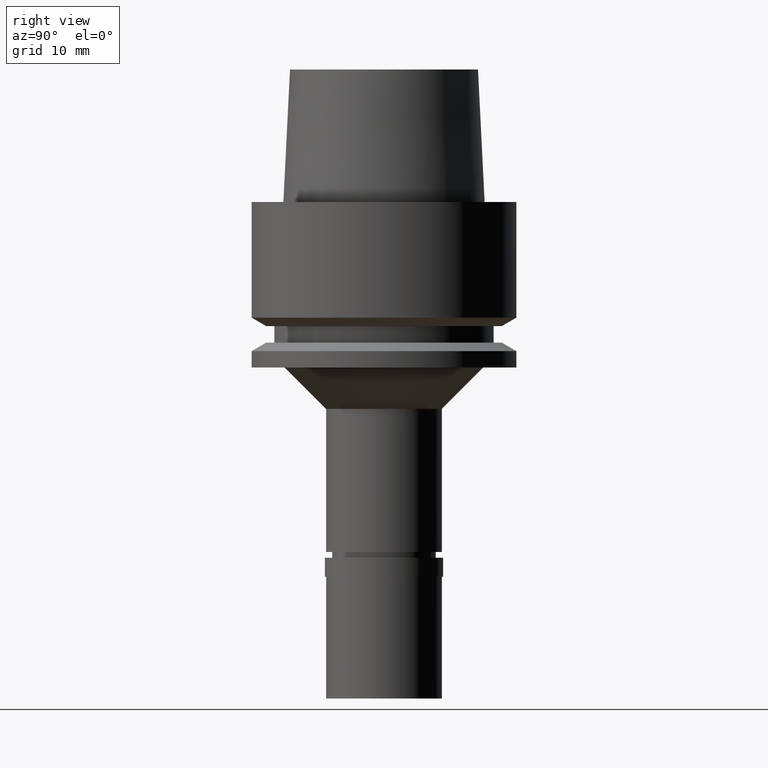
[diagram: clean part render]
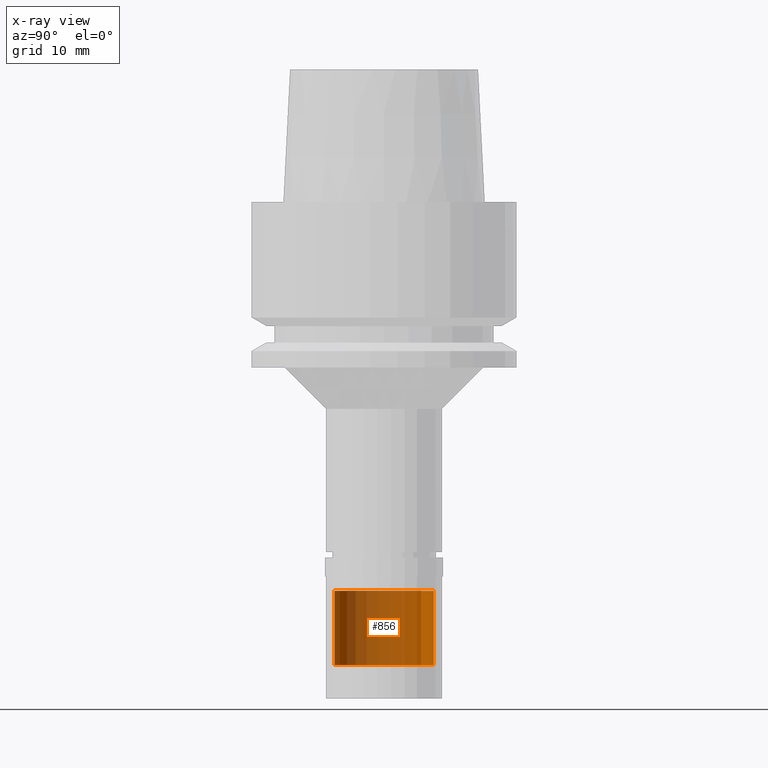
[diagram: x-ray — body ghosted, one internal face saturated and labeled with its STEP entity id]
A machine part, right view, then the same camera in x-ray: the body is ghosted and one INTERNAL B-rep face — a face not visible from any outside direction — is saturated and labeled: STEP entity #856.
In plain terms, the highlighted cylindrical surface (partial cylindrical patch) has radius 6 mm, axis along (0, 0, 1).
Its self-contained STEP definition (entity closure, byte-faithful):
#62 = VECTOR ( 'NONE', #2606, 1000.000000000000000 ) ;
#156 = AXIS2_PLACEMENT_3D ( 'NONE', #2079, #180, #1936 ) ;
#178 = VERTEX_POINT ( 'NONE', #1346 ) ;
#180 = DIRECTION ( 'NONE',  ( 0.0000000000000000000, 0.0000000000000000000, 1.000000000000000000 ) ) ;
#348 = CARTESIAN_POINT ( 'NONE',  ( 0.0000000000000000000, -6.000000000000000000, -56.00000000000000000 ) ) ;
#392 = DIRECTION ( 'NONE',  ( 0.0000000000000000000, 1.000000000000000000, 0.0000000000000000000 ) ) ;
#505 = EDGE_CURVE ( 'NONE', #178, #2668, #1974, .T. ) ;
#600 = CARTESIAN_POINT ( 'NONE',  ( 0.0000000000000000000, 0.0000000000000000000, -56.00000000000000000 ) ) ;
#620 = CARTESIAN_POINT ( 'NONE',  ( 0.0000000000000000000, -6.000000000000000000, -47.00000000000000000 ) ) ;
#652 = CYLINDRICAL_SURFACE ( 'NONE', #156, 6.000000000000000000 ) ;
#741 = EDGE_CURVE ( 'NONE', #1078, #2578, #2675, .T. ) ;
#856 = ADVANCED_FACE ( 'NONE', ( #869 ), #652, .T. ) ;
#869 = FACE_OUTER_BOUND ( 'NONE', #1347, .T. ) ;
#979 = DIRECTION ( 'NONE',  ( 0.0000000000000000000, -1.000000000000000000, 0.0000000000000000000 ) ) ;
#1004 = DIRECTION ( 'NONE',  ( 0.0000000000000000000, 0.0000000000000000000, -1.000000000000000000 ) ) ;
#1025 = DIRECTION ( 'NONE',  ( 0.0000000000000000000, 0.0000000000000000000, 1.000000000000000000 ) ) ;
#1078 = VERTEX_POINT ( 'NONE', #620 ) ;
#1191 = CARTESIAN_POINT ( 'NONE',  ( 0.0000000000000000000, -6.000000000000000000, -47.00000000000000000 ) ) ;
#1336 = AXIS2_PLACEMENT_3D ( 'NONE', #1406, #2656, #979 ) ;
#1346 = CARTESIAN_POINT ( 'NONE',  ( 0.0000000000000000000, 6.000000000000000000, -47.00000000000000000 ) ) ;
#1347 = EDGE_LOOP ( 'NONE', ( #2127, #1636, #2200, #2352 ) ) ;
#1391 = CIRCLE ( 'NONE', #1336, 6.000000000000000000 ) ;
#1406 = CARTESIAN_POINT ( 'NONE',  ( 0.0000000000000000000, 0.0000000000000000000, -47.00000000000000000 ) ) ;
#1593 = CIRCLE ( 'NONE', #1723, 6.000000000000000000 ) ;
#1636 = ORIENTED_EDGE ( 'NONE', *, *, #741, .F. ) ;
#1723 = AXIS2_PLACEMENT_3D ( 'NONE', #600, #1025, #392 ) ;
#1899 = EDGE_CURVE ( 'NONE', #1078, #178, #1391, .T. ) ;
#1936 = DIRECTION ( 'NONE',  ( 0.0000000000000000000, 1.000000000000000000, 0.0000000000000000000 ) ) ;
#1974 = LINE ( 'NONE', #2358, #62 ) ;
#2079 = CARTESIAN_POINT ( 'NONE',  ( 0.0000000000000000000, 0.0000000000000000000, -59.60000000000000142 ) ) ;
#2127 = ORIENTED_EDGE ( 'NONE', *, *, #2373, .T. ) ;
#2200 = ORIENTED_EDGE ( 'NONE', *, *, #1899, .T. ) ;
#2334 = VECTOR ( 'NONE', #1004, 1000.000000000000000 ) ;
#2352 = ORIENTED_EDGE ( 'NONE', *, *, #505, .T. ) ;
#2358 = CARTESIAN_POINT ( 'NONE',  ( 0.0000000000000000000, 6.000000000000000000, -47.00000000000000000 ) ) ;
#2373 = EDGE_CURVE ( 'NONE', #2668, #2578, #1593, .T. ) ;
#2578 = VERTEX_POINT ( 'NONE', #348 ) ;
#2606 = DIRECTION ( 'NONE',  ( 0.0000000000000000000, 0.0000000000000000000, -1.000000000000000000 ) ) ;
#2615 = CARTESIAN_POINT ( 'NONE',  ( 0.0000000000000000000, 6.000000000000000000, -56.00000000000000000 ) ) ;
#2656 = DIRECTION ( 'NONE',  ( 0.0000000000000000000, 0.0000000000000000000, -1.000000000000000000 ) ) ;
#2668 = VERTEX_POINT ( 'NONE', #2615 ) ;
#2675 = LINE ( 'NONE', #1191, #2334 ) ;